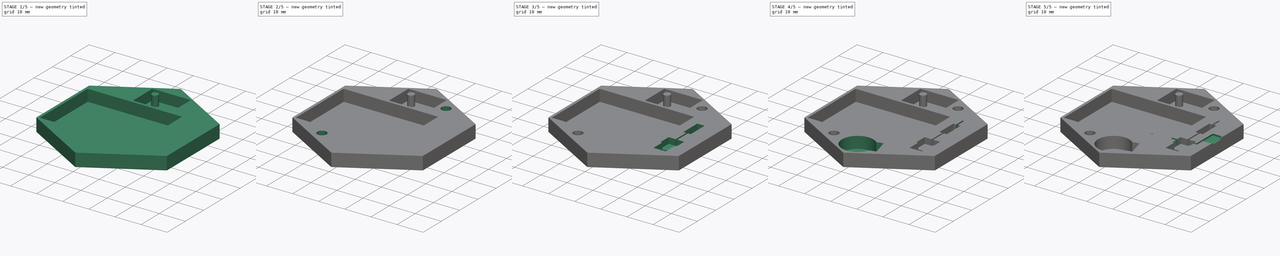
[diagram: build sequence overview — one tinted view per stage of 5, left to right]
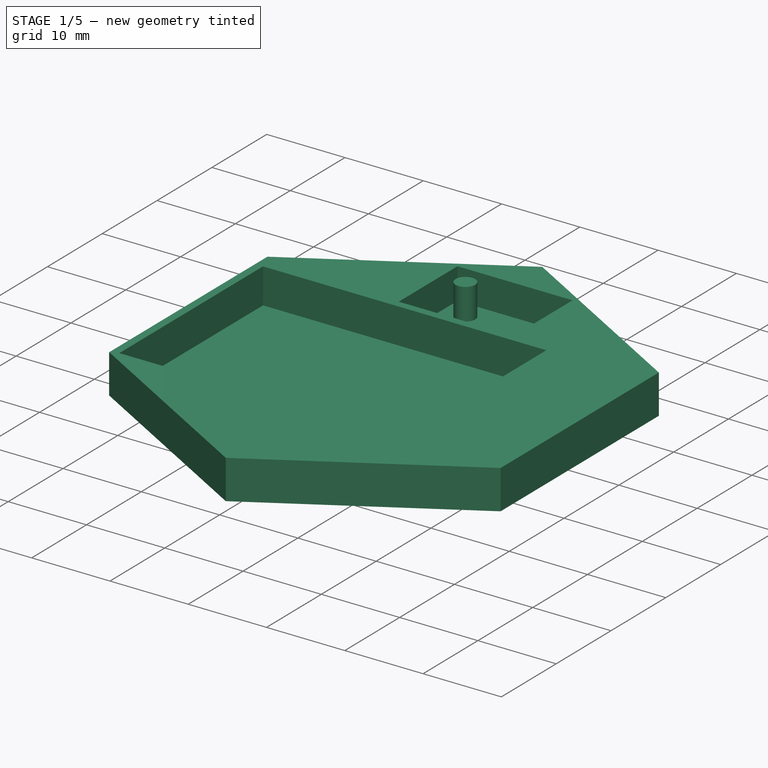
[diagram: stage 1 of 5 — iso view after this stage's code; geometry added in this stage tinted green]
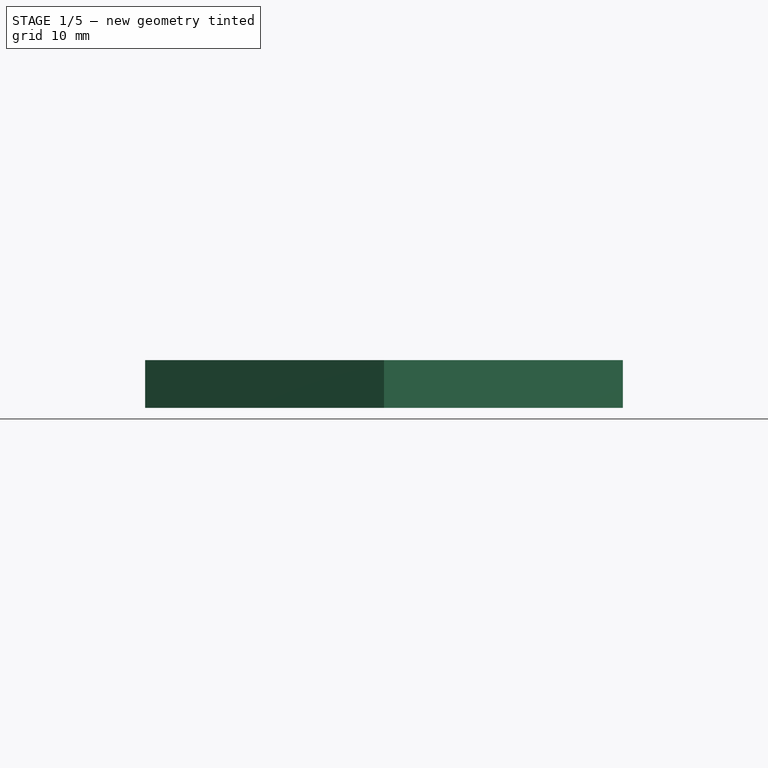
[diagram: stage 1 of 5 — front view after this stage's code; geometry added in this stage tinted green]
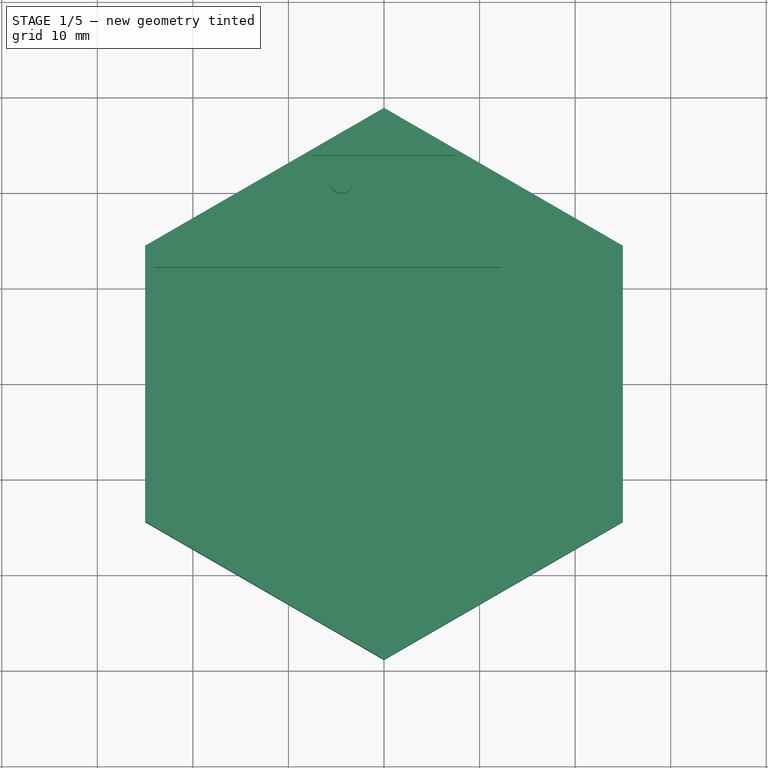
[diagram: stage 1 of 5 — top view after this stage's code; geometry added in this stage tinted green]
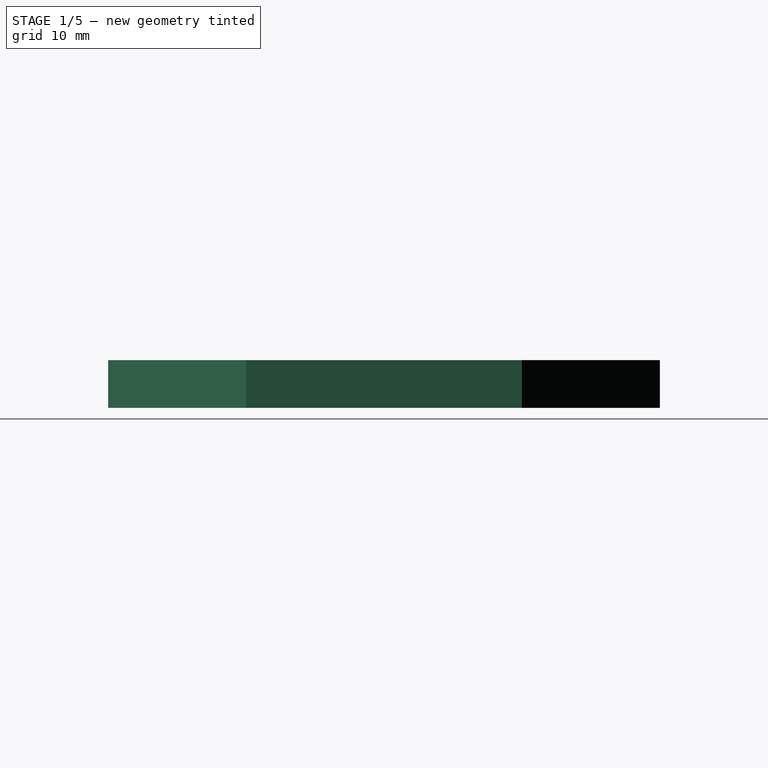
[diagram: stage 1 of 5 — right view after this stage's code; geometry added in this stage tinted green]
FCSTD DOCUMENT  (FreeCAD 0.16R6712 (Git))
Label: VarioFont
License: All rights reserved
LicenseURL: http://en.wikipedia.org/wiki/All_rights_reserved
objects: Sketcher::SketchObject×18, PartDesign::Pocket×16, PartDesign::Pad×2
note: 54 computed .brp shape members not serialized (recipe doc carries the construction recipe); baked Part::Feature solids carry a one-line shape summary decoded from their .brp

FEATURE [Sketcher::SketchObject] Sketch  label="BaseS"
  sketch-geometry (7):
    g0: LineSegment StartX=-25 StartY=14.4338 StartZ=0 EndX=-25 EndY=-14.4338 EndZ=0
    g1: LineSegment StartX=-25 StartY=-14.4338 StartZ=0 EndX=0 EndY=-28.8675 EndZ=0
    g2: LineSegment StartX=0 StartY=-28.8675 StartZ=0 EndX=25 EndY=-14.4338 EndZ=0
    g3: LineSegment StartX=25 StartY=-14.4338 StartZ=0 EndX=25 EndY=14.4338 EndZ=0
    g4: LineSegment StartX=25 StartY=14.4338 StartZ=0 EndX=0 EndY=28.8675 EndZ=0
    g5: LineSegment StartX=0 StartY=28.8675 StartZ=0 EndX=-25 EndY=14.4338 EndZ=0
    g6: Circle [constr] CenterX=0 CenterY=0 CenterZ=0 NormalX=0 NormalY=0 NormalZ=1 Radius=28.8675
  constraints (16):
    c: Coincident(g0,g1)
    c: Coincident(g1,g2)
    c: Coincident(g2,g3)
    c: Coincident(g3,g4)
    c: Coincident(g4,g5)
    c: Coincident(g5,g0)
    c: Equal(g0, g1-g5) x5
    c: PointOnObject(g0,g6)
    c: PointOnObject(g1,g6)
    c: PointOnObject(g2,g6)
    c: PointOnObject(g3,g6)
    c: PointOnObject(g4,g6)
    c: PointOnObject(g5,g6)
    c: Coincident(g6,g-1)
    c: Perpendicular(g-1,g0)
    c: Distance(g-1,g0) = 25
FEATURE [PartDesign::Pad] Pad  label="Base"
  Length = 5
  Length2 = 100
  Sketch = -> Sketch
  Type = 0
FEATURE [Sketcher::SketchObject] Sketch001  label="BatterieS"
  ExternalGeometry = -> [Pad]
  Placement = pos=(0,0,5) rot=(0,0,1;0rad)
  Support = -> Pad [Face8]
  sketch-geometry (4):
    g0: LineSegment StartX=-24 StartY=12.2 StartZ=0 EndX=12.2 EndY=12.2 EndZ=0
    g1: LineSegment StartX=12.2 StartY=12.2 StartZ=0 EndX=12.2 EndY=-14 EndZ=0
    g2: LineSegment StartX=12.2 StartY=-14 StartZ=0 EndX=-24 EndY=-14 EndZ=0
    g3: LineSegment StartX=-24 StartY=-14 StartZ=0 EndX=-24 EndY=12.2 EndZ=0
  constraints (12):
    c: Coincident(g0,g1)
    c: Coincident(g1,g2)
    c: Coincident(g2,g3)
    c: Coincident(g3,g0)
    c: Horizontal(g0)
    c: Horizontal(g2)
    c: Vertical(g1)
    c: Vertical(g3)
    c: DistanceX(g0,g0) = 36.2
    c: DistanceY(g3,g3) = 26.2
    c: Distance(g-3,g3) = 1
    c: Distance(g-1,g2) = 14
FEATURE [PartDesign::Pocket] Pocket  label="Batterie"
  Length = 4.5
  Sketch = -> Sketch001
  Type = 0
FEATURE [Sketcher::SketchObject] Sketch002  label="BarroFondS"
  ExternalGeometry = -> [Pocket]
  Placement = pos=(0,0,5) rot=(0,0,1;0rad)
  Support = -> Pocket [Face5]
  sketch-geometry (4):
    g0: LineSegment StartX=-7.35 StartY=23.9 StartZ=0 EndX=7.35 EndY=23.9 EndZ=0
    g1: LineSegment StartX=7.35 StartY=23.9 StartZ=0 EndX=7.35 EndY=13.2 EndZ=0
    g2: LineSegment StartX=7.35 StartY=13.2 StartZ=0 EndX=-7.35 EndY=13.2 EndZ=0
    g3: LineSegment StartX=-7.35 StartY=13.2 StartZ=0 EndX=-7.35 EndY=23.9 EndZ=0
  constraints (12):
    c: Coincident(g0,g1)
    c: Coincident(g1,g2)
    c: Coincident(g2,g3)
    c: Coincident(g3,g0)
    c: Horizontal(g0)
    c: Horizontal(g2)
    c: Vertical(g1)
    c: Vertical(g3)
    c: Distance(g0) = 14.7
    c: Distance(g3) = 10.7
    c: DistanceX(g-2,g1) = 7.35
    c: DistanceY(g-1,g0) = 23.9
FEATURE [PartDesign::Pocket] Pocket001  label="BarroFond"
  Length = 4
  Sketch = -> Sketch002
  Type = 0
FEATURE [Sketcher::SketchObject] Sketch003  label="BarroTigeS"
  ExternalGeometry = -> [Pocket001]
  Placement = pos=(0,0,1) rot=(0,0,1;0rad)
  Support = -> Pocket001 [Face17]
  sketch-geometry (1):
    g0: Circle CenterX=-4.45 CenterY=21.2 CenterZ=0 NormalX=0 NormalY=0 NormalZ=1 Radius=1.25
  constraints (3):
    c: Radius(g0) = 1.25
    c: Distance(g0,g-3) = 2.7
    c: Distance(g0,g-4) = 2.9
FEATURE [PartDesign::Pad] Pad001  label="BarroTige"
  Length = 4
  Length2 = 100
  Sketch = -> Sketch003
  Type = 0
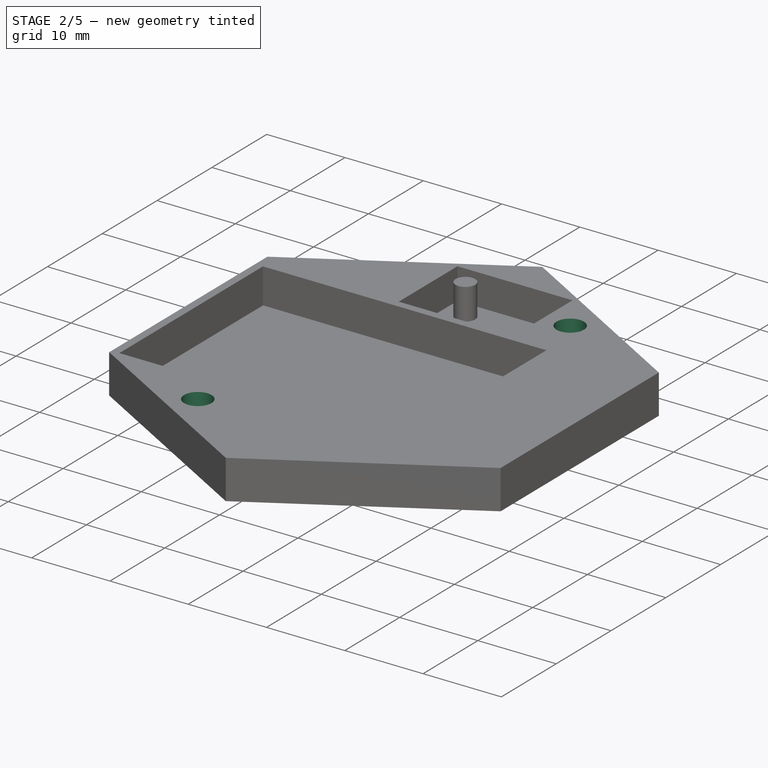
[diagram: stage 2 of 5 — iso view after this stage's code; geometry added in this stage tinted green]
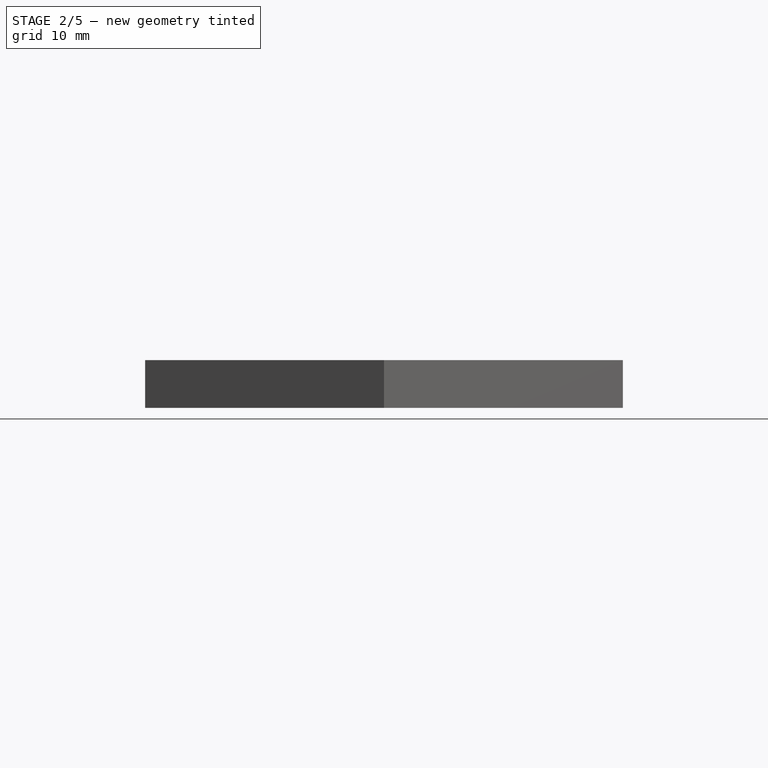
[diagram: stage 2 of 5 — front view after this stage's code; geometry added in this stage tinted green]
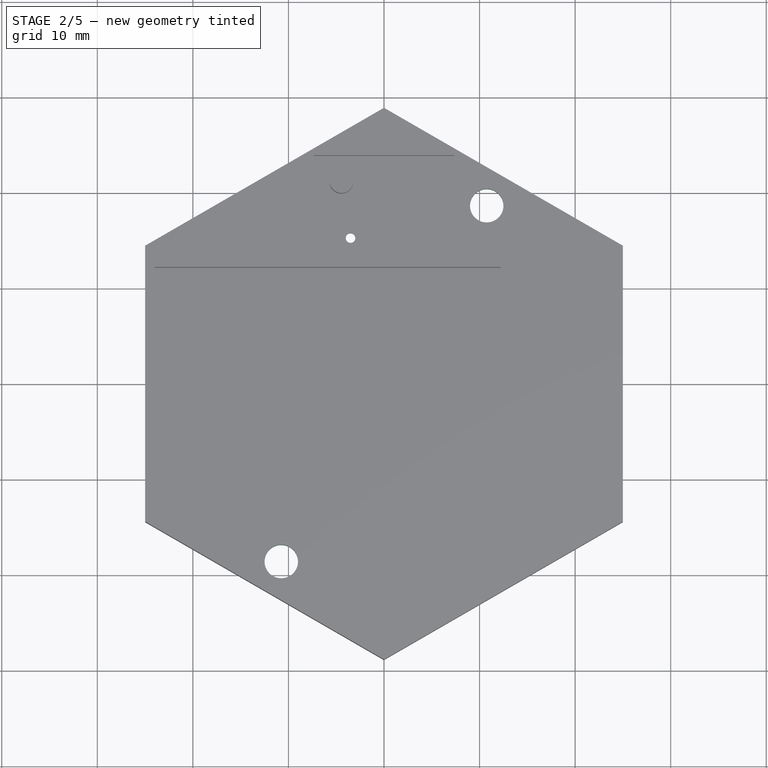
[diagram: stage 2 of 5 — top view after this stage's code; geometry added in this stage tinted green]
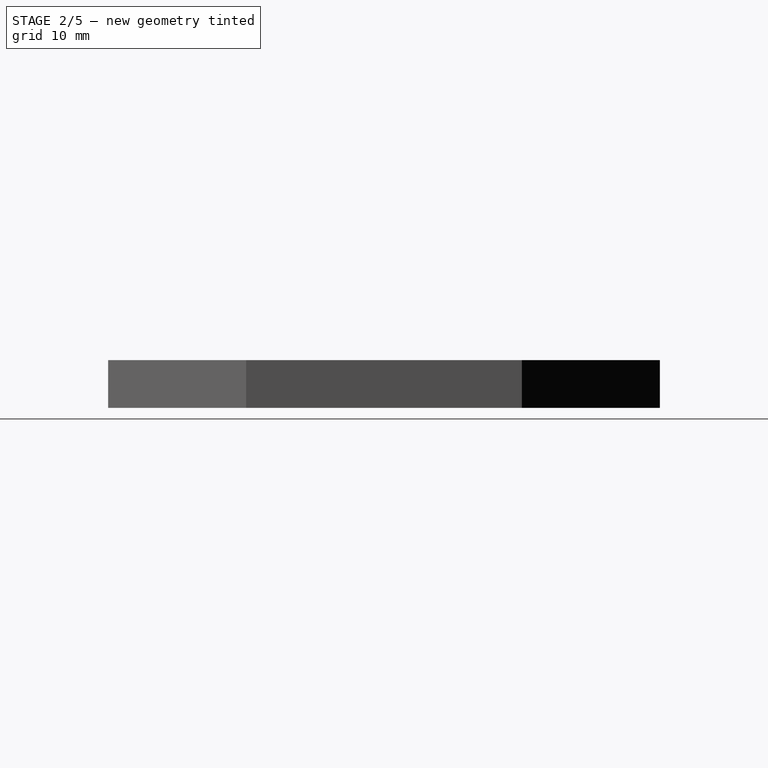
[diagram: stage 2 of 5 — right view after this stage's code; geometry added in this stage tinted green]
FEATURE [Sketcher::SketchObject] Sketch004  label="BarroTrouS"
  ExternalGeometry = -> [Pad001]
  Placement = pos=(0,0,1) rot=(0,0,1;0rad)
  Support = -> Pad001 [Face17]
  sketch-geometry (1):
    g0: Circle CenterX=-3.5 CenterY=15.3 CenterZ=0 NormalX=0 NormalY=0 NormalZ=1 Radius=0.5
  constraints (3):
    c: Radius(g0) = 0.5
    c: Distance(g0,g-3) = 2.1
    c: Distance(g0,g-4) = 3.85
FEATURE [PartDesign::Pocket] Pocket002  label="BarroTrou"
  Length = 5
  Sketch = -> Sketch004
  Type = 1
FEATURE [Sketcher::SketchObject] Sketch005  label="VisseS"
  ExternalGeometry = -> [Pocket002]
  Placement = pos=(0,0,5) rot=(0,0,1;0rad)
  Support = -> Pocket002 [Face5]
  sketch-geometry (4):
    g0: Circle CenterX=10.75 CenterY=18.6195 CenterZ=0 NormalX=0 NormalY=0 NormalZ=1 Radius=1.75
    g1: Circle CenterX=-10.75 CenterY=-18.6195 CenterZ=0 NormalX=0 NormalY=0 NormalZ=1 Radius=1.75
    g2: LineSegment [constr] StartX=0 StartY=0 StartZ=0 EndX=12.5 EndY=21.6506 EndZ=0
    g3: LineSegment [constr] StartX=-12.5 StartY=-21.6506 StartZ=0 EndX=0 EndY=0 EndZ=0
  constraints (11):
    c: Coincident(g3,g-1)
    c: Coincident(g2,g-1)
    c: PointOnObject(g3,g-4)
    c: Symmetric(g-4,g-4,g3)
    c: Symmetric(g-3,g-3,g2)
    c: PointOnObject(g0,g2)
    c: Radius(g0) = 1.75
    c: Distance(g-1,g0) = 21.5
    c: PointOnObject(g1,g3)
    c: Distance(g-1,g1) = 21.5
    c: Radius(g1) = 1.75
FEATURE [PartDesign::Pocket] Pocket003  label="Visses"
  Length = 5
  Sketch = -> Sketch005
  Type = 1
FEATURE [Sketcher::SketchObject] Sketch006  label="BoulonsS"
  ExternalGeometry = -> [Pocket003]
  Placement = pos=(0,0,0) rot=(1,0,0;3.14159rad)
  Support = -> Pocket003 [Face4]
  sketch-geometry (14):
    g0: LineSegment StartX=-13.05 StartY=17.2916 StartZ=0 EndX=-10.75 EndY=15.9637 EndZ=0
    g1: LineSegment StartX=-10.75 StartY=15.9637 StartZ=0 EndX=-8.45 EndY=17.2916 EndZ=0
    g2: LineSegment StartX=-8.45 StartY=17.2916 StartZ=0 EndX=-8.45 EndY=19.9475 EndZ=0
    g3: LineSegment StartX=-8.45 StartY=19.9475 StartZ=0 EndX=-10.75 EndY=21.2754 EndZ=0
    g4: LineSegment StartX=-10.75 StartY=21.2754 StartZ=0 EndX=-13.05 EndY=19.9475 EndZ=0
    g5: LineSegment StartX=-13.05 StartY=19.9475 StartZ=0 EndX=-13.05 EndY=17.2916 EndZ=0
    g6: Circle [constr] CenterX=-10.75 CenterY=18.6195 CenterZ=0 NormalX=0 NormalY=0 NormalZ=1 Radius=2.65581
    g7: LineSegment StartX=10.75 StartY=-21.2754 StartZ=0 EndX=13.05 EndY=-19.9475 EndZ=0
    g8: LineSegment StartX=13.05 StartY=-19.9475 StartZ=0 EndX=13.05 EndY=-17.2916 EndZ=0
    g9: LineSegment StartX=13.05 StartY=-17.2916 StartZ=0 EndX=10.75 EndY=-15.9637 EndZ=0
    g10: LineSegment StartX=10.75 StartY=-15.9637 StartZ=0 EndX=8.45 EndY=-17.2916 EndZ=0
    g11: LineSegment StartX=8.45 StartY=-17.2916 StartZ=0 EndX=8.45 EndY=-19.9475 EndZ=0
    g12: LineSegment StartX=8.45 StartY=-19.9475 StartZ=0 EndX=10.75 EndY=-21.2754 EndZ=0
    g13: Circle [constr] CenterX=10.75 CenterY=-18.6195 CenterZ=0 NormalX=0 NormalY=0 NormalZ=1 Radius=2.65581
  constraints (32):
    c: Coincident(g0,g1)
    c: Coincident(g1,g2)
    c: Coincident(g2,g3)
    c: Coincident(g3,g4)
    c: Coincident(g4,g5)
    c: Coincident(g5,g0)
    c: Equal(g0, g1-g5) x5
    c: PointOnObject(g0,g6)
    c: PointOnObject(g1,g6)
    c: PointOnObject(g2,g6)
    c: PointOnObject(g3,g6)
    c: PointOnObject(g4,g6)
    c: PointOnObject(g5,g6)
    c: Coincident(g7,g8)
    c: Coincident(g8,g9)
    c: Coincident(g9,g10)
    c: Coincident(g10,g11)
    c: Coincident(g11,g12)
    c: Coincident(g12,g7)
    c: Equal(g7, g8-g12) x5
    c: PointOnObject(g7,g13)
    c: PointOnObject(g8,g13)
    c: PointOnObject(g9,g13)
    c: PointOnObject(g10,g13)
    c: PointOnObject(g11,g13)
    c: PointOnObject(g12,g13)
    c: Coincident(g13,g-4)
    c: Parallel(g7,g-5)
    c: Distance(g13,g12) = 2.3
    c: Coincident(g6,g-3)
    c: Distance(g6,g5) = 2.3
    c: Parallel(g4,g-6)
FEATURE [PartDesign::Pocket] Pocket004  label="Boulons"
  Length = 2.5
  Sketch = -> Sketch006
  Type = 0
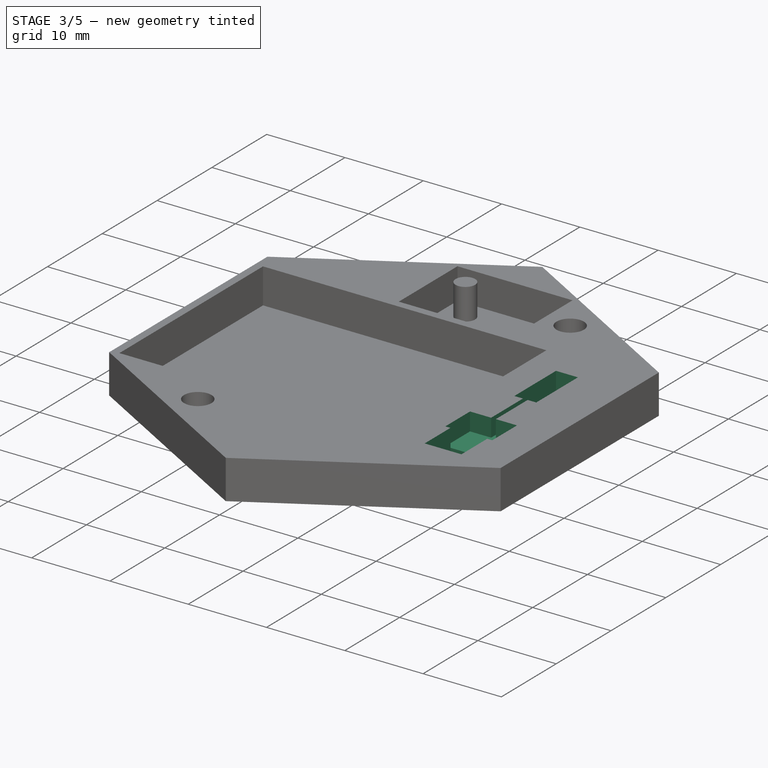
[diagram: stage 3 of 5 — iso view after this stage's code; geometry added in this stage tinted green]
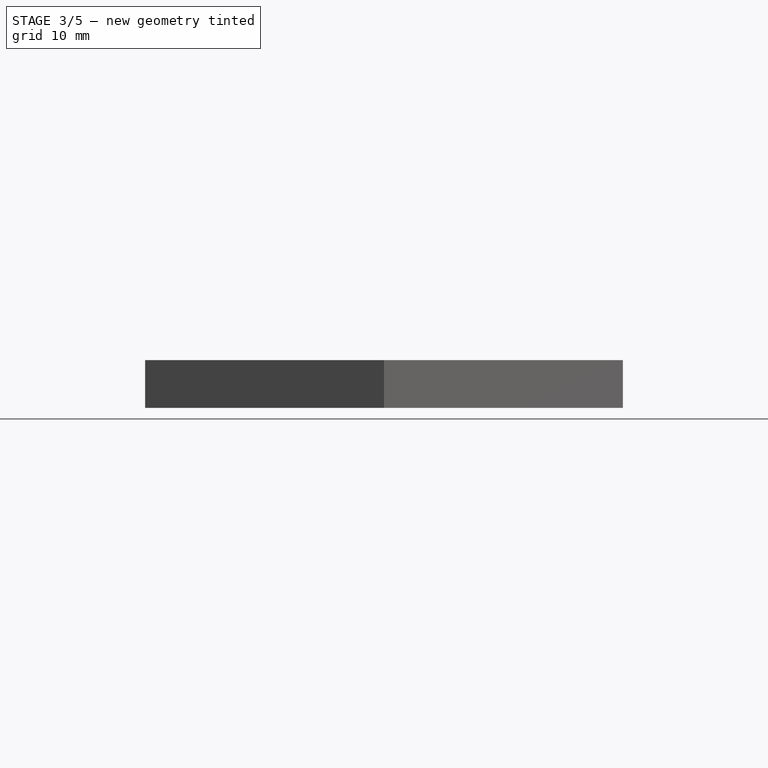
[diagram: stage 3 of 5 — front view after this stage's code; geometry added in this stage tinted green]
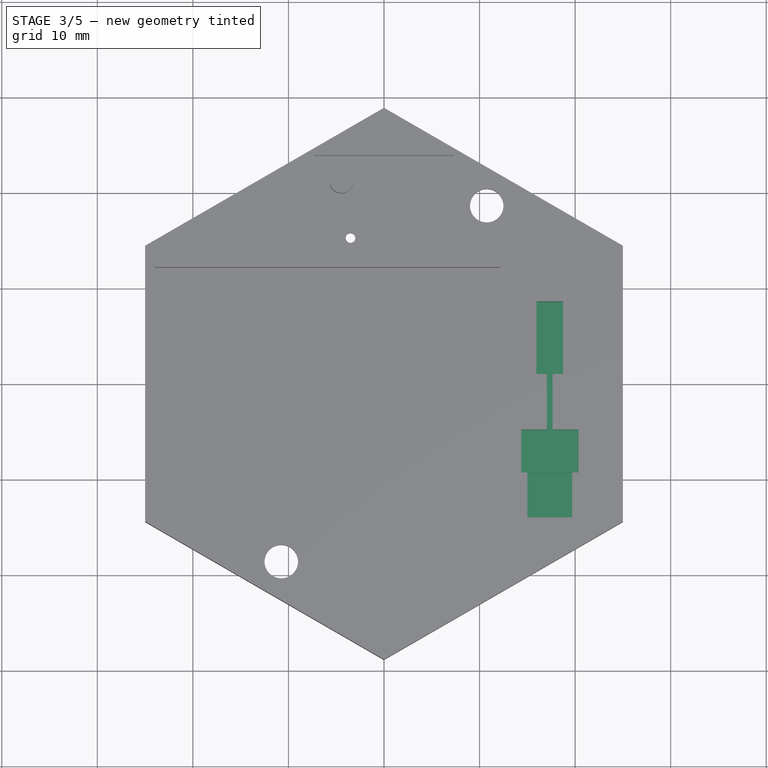
[diagram: stage 3 of 5 — top view after this stage's code; geometry added in this stage tinted green]
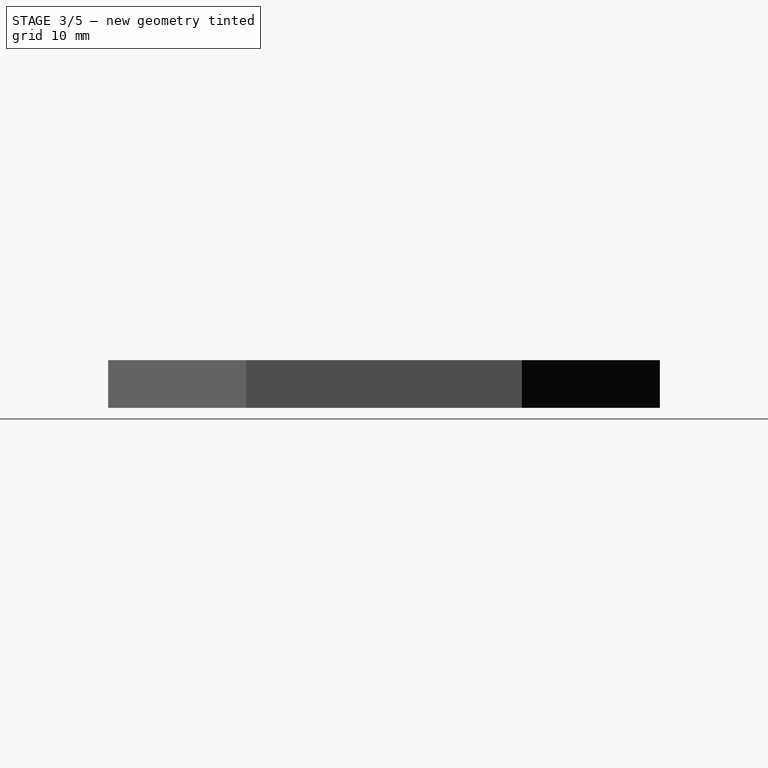
[diagram: stage 3 of 5 — right view after this stage's code; geometry added in this stage tinted green]
FEATURE [Sketcher::SketchObject] Sketch007  label="Transostor1S"
  ExternalGeometry = -> [Pocket004]
  Placement = pos=(0,0,5) rot=(0,0,1;0rad)
  Support = -> Pocket004 [Face5]
  sketch-geometry (4):
    g0: LineSegment StartX=15 StartY=-9.3 StartZ=0 EndX=19.7 EndY=-9.3 EndZ=0
    g1: LineSegment StartX=19.7 StartY=-9.3 StartZ=0 EndX=19.7 EndY=-14 EndZ=0
    g2: LineSegment StartX=19.7 StartY=-14 StartZ=0 EndX=15 EndY=-14 EndZ=0
    g3: LineSegment StartX=15 StartY=-14 StartZ=0 EndX=15 EndY=-9.3 EndZ=0
  constraints (12):
    c: Coincident(g0,g1)
    c: Coincident(g1,g2)
    c: Coincident(g2,g3)
    c: Coincident(g3,g0)
    c: Horizontal(g0)
    c: Horizontal(g2)
    c: Vertical(g1)
    c: Vertical(g3)
    c: DistanceY(g3,g3) = 4.7
    c: DistanceX(g2,g2) = 4.7
    c: DistanceX(g-2,g2) = 15
    c: Distance(g-1,g2) = 14
FEATURE [PartDesign::Pocket] Pocket005  label="Transistor1"
  Length = 3.7
  Sketch = -> Sketch007
  Type = 0
FEATURE [Sketcher::SketchObject] Sketch008  label="Transostor2S"
  ExternalGeometry = -> [Pocket005]
  Placement = pos=(0,0,5) rot=(0,0,1;0rad)
  Support = -> Pocket005 [Face5]
  sketch-geometry (5):
    g0: LineSegment StartX=14.35 StartY=-4.8 StartZ=0 EndX=20.35 EndY=-4.8 EndZ=0
    g1: LineSegment StartX=20.35 StartY=-4.8 StartZ=0 EndX=20.35 EndY=-9.3 EndZ=0
    g2: LineSegment StartX=20.35 StartY=-9.3 StartZ=0 EndX=14.35 EndY=-9.3 EndZ=0
    g3: LineSegment StartX=14.35 StartY=-9.3 StartZ=0 EndX=14.35 EndY=-4.8 EndZ=0
    g4: GeomPoint [constr] X=17.35 Y=-9.3 Z=0
  constraints (14):
    c: Coincident(g0,g1)
    c: Coincident(g1,g2)
    c: Coincident(g2,g3)
    c: Coincident(g3,g0)
    c: Horizontal(g0)
    c: Horizontal(g2)
    c: Vertical(g1)
    c: Vertical(g3)
    c: PointOnObject(g-3,g2)
    c: DistanceY(g3,g3) = 4.5
    c: DistanceX(g0,g0) = 6
    c: PointOnObject(g4,g-3)
    c: Symmetric(g-3,g-3,g4)
    c: Symmetric(g2,g1,g4)
FEATURE [PartDesign::Pocket] Pocket006  label="Transistor2"
  Length = 2.3
  Sketch = -> Sketch008
  Type = 0
FEATURE [Sketcher::SketchObject] Sketch009  label="Tige1S"
  ExternalGeometry = -> [Pocket006]
  Placement = pos=(0,0,5) rot=(0,0,1;0rad)
  Support = -> Pocket006 [Face5]
  sketch-geometry (5):
    g0: LineSegment StartX=17.05 StartY=1 StartZ=0 EndX=17.65 EndY=1 EndZ=0
    g1: LineSegment StartX=17.65 StartY=1 StartZ=0 EndX=17.65 EndY=-4.8 EndZ=0
    g2: LineSegment StartX=17.65 StartY=-4.8 StartZ=0 EndX=17.05 EndY=-4.8 EndZ=0
    g3: LineSegment StartX=17.05 StartY=-4.8 StartZ=0 EndX=17.05 EndY=1 EndZ=0
    g4: GeomPoint [constr] X=17.35 Y=-4.8 Z=0
  constraints (13):
    c: Coincident(g0,g1)
    c: Coincident(g1,g2)
    c: Coincident(g2,g3)
    c: Coincident(g3,g0)
    c: Horizontal(g0)
    c: Horizontal(g2)
    c: Vertical(g1)
    c: Vertical(g3)
    c: PointOnObject(g4,g-3)
    c: Symmetric(g-3,g-3,g4)
    c: Symmetric(g2,g1,g4)
    c: DistanceX(g0,g0) = 0.6
    c: Distance(g0,g-4) = 15
FEATURE [PartDesign::Pocket] Pocket007  label="Tige1"
  Length = 2.3
  Sketch = -> Sketch009
  Type = 0
FEATURE [Sketcher::SketchObject] Sketch010  label="DiodeS"
  ExternalGeometry = -> [Pocket007]
  Placement = pos=(0,0,5) rot=(0,0,1;0rad)
  Support = -> Pocket007 [Face5]
  sketch-geometry (5):
    g0: LineSegment StartX=15.95 StartY=8.6 StartZ=0 EndX=18.75 EndY=8.6 EndZ=0
    g1: LineSegment StartX=18.75 StartY=8.6 StartZ=0 EndX=18.75 EndY=1 EndZ=0
    g2: LineSegment StartX=18.75 StartY=1 StartZ=0 EndX=15.95 EndY=1 EndZ=0
    g3: LineSegment StartX=15.95 StartY=1 StartZ=0 EndX=15.95 EndY=8.6 EndZ=0
    g4: GeomPoint [constr] X=17.35 Y=1 Z=0
  constraints (13):
    c: Coincident(g0,g1)
    c: Coincident(g1,g2)
    c: Coincident(g2,g3)
    c: Coincident(g3,g0)
    c: Horizontal(g0)
    c: Horizontal(g2)
    c: Vertical(g1)
    c: Vertical(g3)
    c: PointOnObject(g4,g2)
    c: Symmetric(g2,g1,g4)
    c: Symmetric(g-4,g-4,g4)
    c: DistanceX(g2,g2) = 2.8
    c: DistanceY(g1,g1) = 7.6
FEATURE [PartDesign::Pocket] Pocket008  label="Diode"
  Length = 2.8
  Sketch = -> Sketch010
  Type = 0
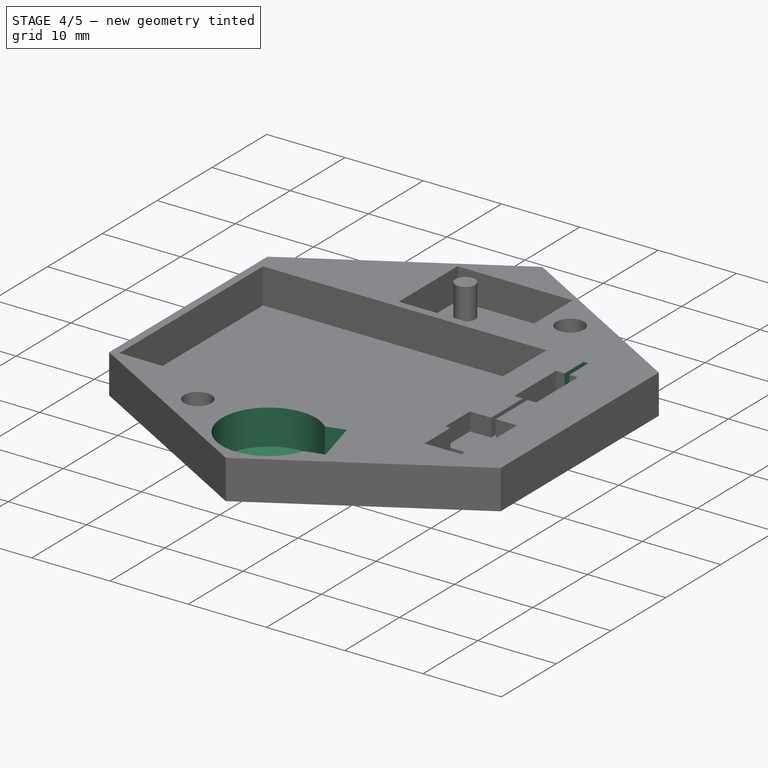
[diagram: stage 4 of 5 — iso view after this stage's code; geometry added in this stage tinted green]
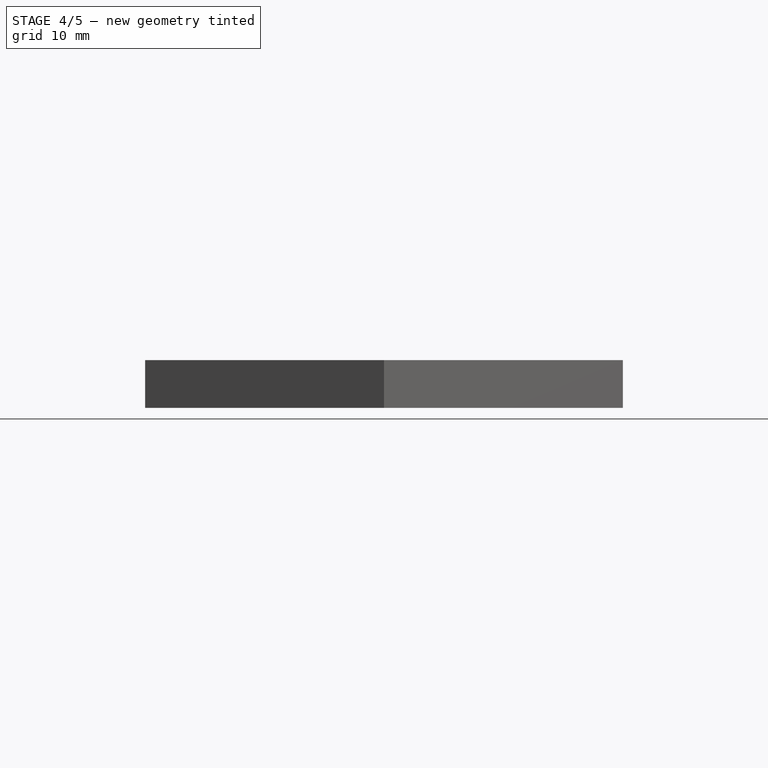
[diagram: stage 4 of 5 — front view after this stage's code; geometry added in this stage tinted green]
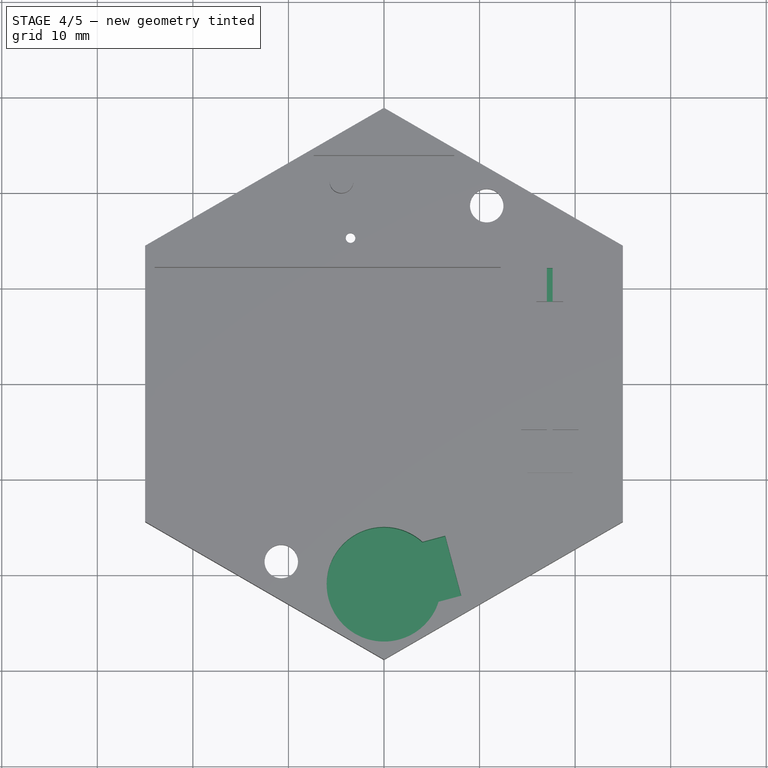
[diagram: stage 4 of 5 — top view after this stage's code; geometry added in this stage tinted green]
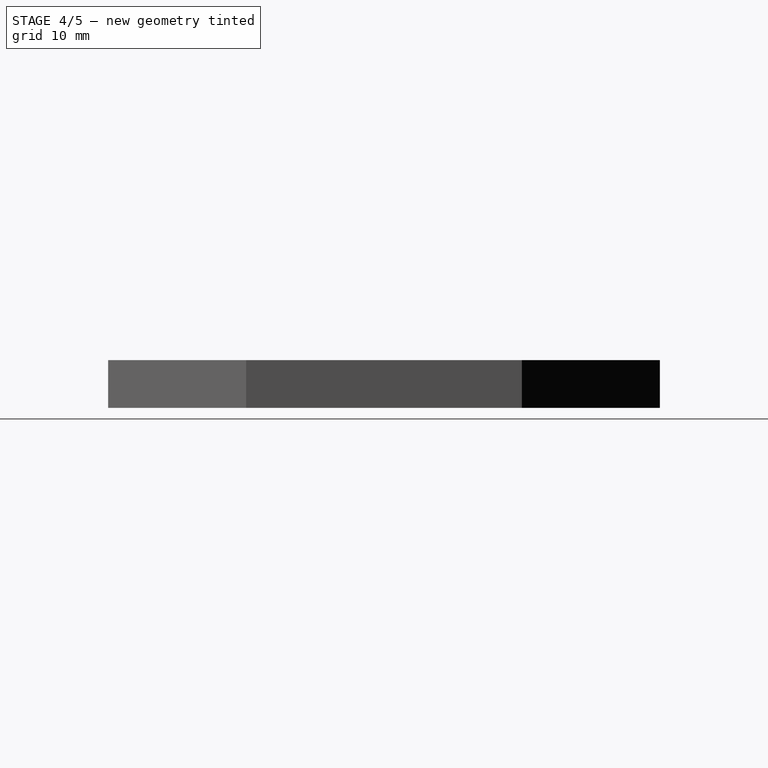
[diagram: stage 4 of 5 — right view after this stage's code; geometry added in this stage tinted green]
FEATURE [Sketcher::SketchObject] Sketch011  label="Tige2S"
  ExternalGeometry = -> [Pocket008]
  Placement = pos=(0,0,5) rot=(0,0,1;0rad)
  Support = -> Pocket008 [Face5]
  sketch-geometry (5):
    g0: LineSegment StartX=17.05 StartY=12.1 StartZ=0 EndX=17.65 EndY=12.1 EndZ=0
    g1: LineSegment StartX=17.65 StartY=12.1 StartZ=0 EndX=17.65 EndY=8.6 EndZ=0
    g2: LineSegment StartX=17.65 StartY=8.6 StartZ=0 EndX=17.05 EndY=8.6 EndZ=0
    g3: LineSegment StartX=17.05 StartY=8.6 StartZ=0 EndX=17.05 EndY=12.1 EndZ=0
    g4: GeomPoint [constr] X=17.35 Y=8.6 Z=0
  constraints (13):
    c: Coincident(g0,g1)
    c: Coincident(g1,g2)
    c: Coincident(g2,g3)
    c: Coincident(g3,g0)
    c: Horizontal(g0)
    c: Horizontal(g2)
    c: Vertical(g1)
    c: Vertical(g3)
    c: PointOnObject(g4,g2)
    c: Symmetric(g2,g1,g4)
    c: Symmetric(g-3,g-3,g4)
    c: DistanceY(g1,g1) = 3.5
    c: DistanceX(g0,g0) = 0.6
FEATURE [PartDesign::Pocket] Pocket009  label="Tige2"
  Length = 2.3
  Sketch = -> Sketch011
  Type = 0
FEATURE [Sketcher::SketchObject] Sketch012  label="BipCercleS"
  Placement = pos=(0,0,5) rot=(0,0,1;0rad)
  Support = -> Pocket009 [Face5]
  sketch-geometry (1):
    g0: Circle CenterX=0 CenterY=-21 CenterZ=0 NormalX=0 NormalY=0 NormalZ=1 Radius=6
  constraints (3):
    c: PointOnObject(g0,g-2)
    c: Distance(g-1,g0) = 21
    c: Radius(g0) = 6
FEATURE [PartDesign::Pocket] Pocket010  label="BipCercle"
  Length = 4.5
  Sketch = -> Sketch012
  Type = 0
FEATURE [Sketcher::SketchObject] Sketch013  label="BipTigeS"
  ExternalGeometry = -> [Pocket010]
  Placement = pos=(0,0,5) rot=(0,0,1;0rad)
  Support = -> Pocket010 [Face5]
  sketch-geometry (4):
    g0: LineSegment StartX=-0.841162 StartY=-17.8607 StartZ=0 EndX=6.40328 EndY=-15.9196 EndZ=0
    g1: LineSegment StartX=6.40328 StartY=-15.9196 StartZ=0 EndX=8.08561 EndY=-22.1981 EndZ=0
    g2: LineSegment StartX=8.08561 StartY=-22.1981 StartZ=0 EndX=0.841162 EndY=-24.1393 EndZ=0
    g3: LineSegment StartX=0.841162 StartY=-24.1393 StartZ=0 EndX=-0.841162 EndY=-17.8607 EndZ=0
  constraints (12):
    c: Coincident(g0,g1)
    c: Coincident(g1,g2)
    c: Coincident(g2,g3)
    c: Coincident(g3,g0)
    c: Angle(g3,g-2) = 2.87979
    c: PointOnObject(g-3,g3)
    c: Symmetric(g0,g2,g-3)
    c: Parallel(g3,g1)
    c: Perpendicular(g0,g3)
    c: Distance(g1) = 6.5
    c: Perpendicular(g2,g1)
    c: Distance(g0) = 7.5
FEATURE [PartDesign::Pocket] Pocket011  label="BipTige"
  Length = 4.5
  Sketch = -> Sketch013
  Type = 0
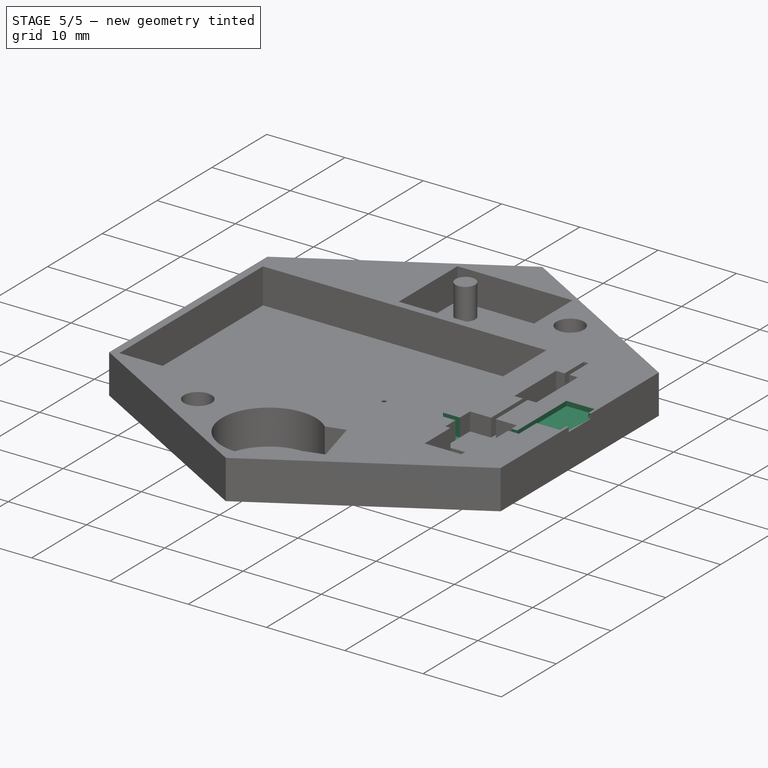
[diagram: stage 5 of 5 — iso view after this stage's code; geometry added in this stage tinted green]
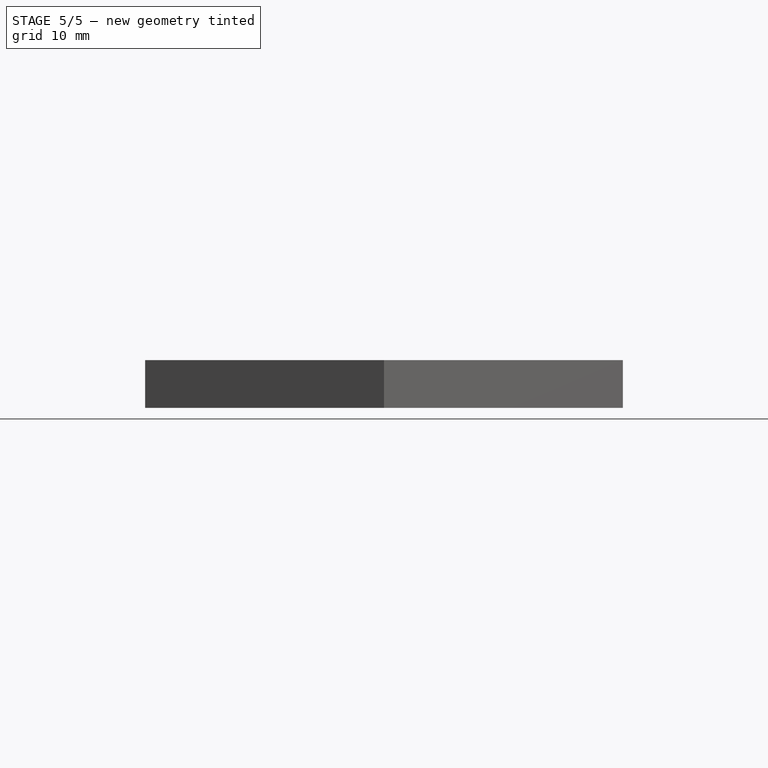
[diagram: stage 5 of 5 — front view after this stage's code; geometry added in this stage tinted green]
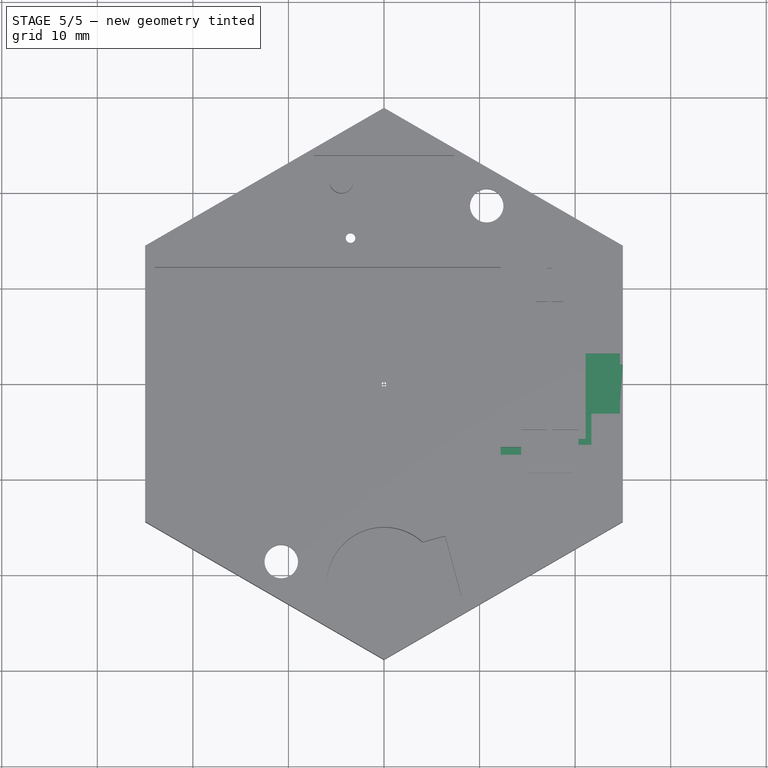
[diagram: stage 5 of 5 — top view after this stage's code; geometry added in this stage tinted green]
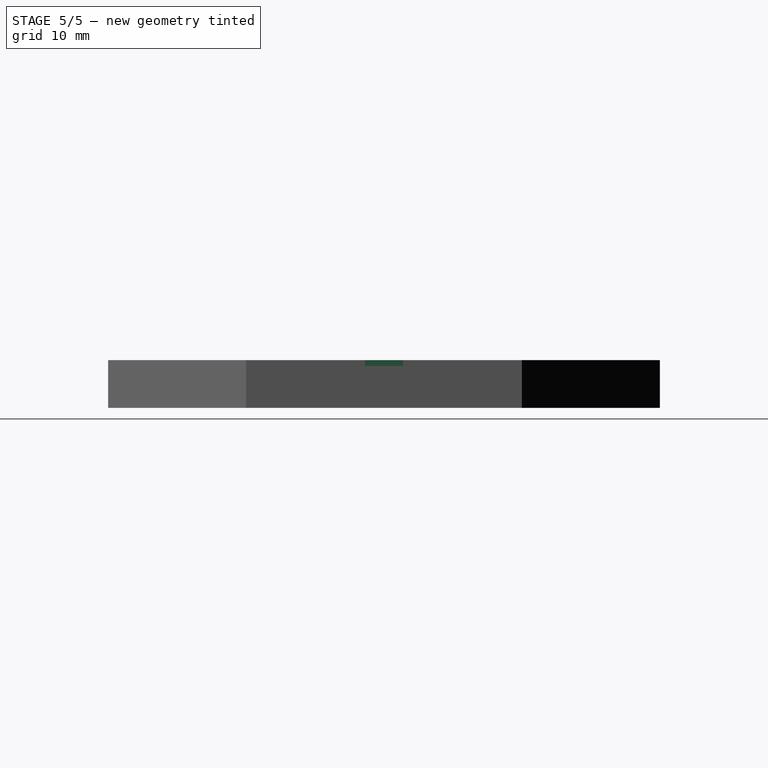
[diagram: stage 5 of 5 — right view after this stage's code; geometry added in this stage tinted green]
FEATURE [Sketcher::SketchObject] Sketch014  label="BatteriePassS"
  ExternalGeometry = -> [Pocket011]
  Placement = pos=(0,0,5) rot=(0,0,1;0rad)
  Support = -> Pocket011 [Face5]
  sketch-geometry (5):
    g0: LineSegment StartX=12.2 StartY=-6.65 StartZ=0 EndX=14.35 EndY=-6.65 EndZ=0
    g1: LineSegment StartX=14.35 StartY=-6.65 StartZ=0 EndX=14.35 EndY=-7.45 EndZ=0
    g2: LineSegment StartX=14.35 StartY=-7.45 StartZ=0 EndX=12.2 EndY=-7.45 EndZ=0
    g3: LineSegment StartX=12.2 StartY=-7.45 StartZ=0 EndX=12.2 EndY=-6.65 EndZ=0
    g4: GeomPoint [constr] X=14.35 Y=-7.05 Z=0
  constraints (13):
    c: Coincident(g0,g1)
    c: Coincident(g1,g2)
    c: Coincident(g2,g3)
    c: Coincident(g3,g0)
    c: Horizontal(g0)
    c: Horizontal(g2)
    c: Vertical(g1)
    c: Vertical(g3)
    c: PointOnObject(g0,g-3)
    c: PointOnObject(g0,g-4)
    c: Distance(g1,g0) = 0.8
    c: Symmetric(g-4,g-4,g4)
    c: Symmetric(g1,g0,g4)
FEATURE [PartDesign::Pocket] Pocket012  label="BatteriePass"
  Length = 2.3
  Sketch = -> Sketch014
  Type = 0
FEATURE [Sketcher::SketchObject] Sketch015  label="BouttonS"
  ExternalGeometry = -> [Pocket012]
  Placement = pos=(0,0,5) rot=(0,0,1;0rad)
  Support = -> Pocket012 [Face5]
  sketch-geometry (10):
    g0: LineSegment StartX=21.1 StartY=3.15 StartZ=0 EndX=24.7 EndY=3.15 EndZ=0
    g1: LineSegment StartX=24.7 StartY=-3.15 StartZ=0 EndX=21.1 EndY=-3.15 EndZ=0
    g2: LineSegment StartX=21.1 StartY=-3.15 StartZ=0 EndX=21.1 EndY=3.15 EndZ=0
    g3: LineSegment StartX=24.7 StartY=3.15 StartZ=0 EndX=24.7 EndY=2 EndZ=0
    g4: LineSegment StartX=24.7 StartY=2 StartZ=0 EndX=25.4 EndY=2 EndZ=0
    g5: LineSegment StartX=25.4 StartY=2 StartZ=0 EndX=25.4 EndY=-2 EndZ=0
    g6: LineSegment StartX=25.4 StartY=-2 StartZ=0 EndX=24.7 EndY=-2 EndZ=0
    g7: LineSegment StartX=24.7 StartY=-2 StartZ=0 EndX=24.7 EndY=-3.15 EndZ=0
    g8: GeomPoint [constr] X=21.1 Y=0 Z=0
    g9: GeomPoint [constr] X=25.4 Y=0 Z=0
  constraints (28):
    c: Coincident(g1,g2)
    c: Coincident(g2,g0)
    c: Horizontal(g0)
    c: Horizontal(g1)
    c: Vertical(g2)
    c: Horizontal(g4)
    c: Vertical(g5)
    c: Horizontal(g6)
    c: Vertical(g7)
    c: Coincident(g1,g7)
    c: Coincident(g0,g3)
    c: Coincident(g3,g4)
    c: Coincident(g4,g5)
    c: Coincident(g6,g7)
    c: Coincident(g5,g6)
    c: PointOnObject(g8,g2)
    c: Symmetric(g0,g1,g8)
    c: PointOnObject(g8,g-1)
    c: Vertical(g3)
    c: PointOnObject(g9,g5)
    c: Symmetric(g4,g5,g9)
    c: Equal(g0,g1)
    c: PointOnObject(g9,g-1)
    c: DistanceY(g5,g5) = 4
    c: DistanceY(g2,g2) = 6.3
    c: DistanceX(g0,g0) = 3.6
    c: Distance(g4,g2) = 4.3
    c: Distance(g0,g-3) = 0.3
FEATURE [PartDesign::Pocket] Pocket013  label="Boutton"
  Length = 0.6
  Sketch = -> Sketch015
  Type = 0
FEATURE [Sketcher::SketchObject] Sketch016  label="TigeBouttonS"
  ExternalGeometry = -> [Pocket013]
  Placement = pos=(0,0,5) rot=(0,0,1;0rad)
  Support = -> Pocket013 [Face5]
  sketch-geometry (6):
    g0: LineSegment StartX=20.35 StartY=-5.8 StartZ=0 EndX=21.1 EndY=-5.8 EndZ=0
    g1: LineSegment StartX=21.1 StartY=-3.15 StartZ=0 EndX=21.1 EndY=-5.8 EndZ=0
    g2: LineSegment StartX=21.1 StartY=-3.15 StartZ=0 EndX=21.7 EndY=-3.15 EndZ=0
    g3: LineSegment StartX=21.7 StartY=-3.15 StartZ=0 EndX=21.7 EndY=-6.4 EndZ=0
    g4: LineSegment StartX=21.7 StartY=-6.4 StartZ=0 EndX=20.35 EndY=-6.4 EndZ=0
    g5: LineSegment StartX=20.35 StartY=-5.8 StartZ=0 EndX=20.35 EndY=-6.4 EndZ=0
  constraints (17):
    c: Horizontal(g0)
    c: Vertical(g1)
    c: Horizontal(g2)
    c: Vertical(g3)
    c: Horizontal(g4)
    c: Coincident(g0,g5)
    c: Coincident(g4,g5)
    c: Vertical(g5)
    c: Coincident(g0,g1)
    c: Coincident(g3,g4)
    c: Coincident(g1,g2)
    c: Coincident(g2,g3)
    c: DistanceX(g2,g2) = 0.6
    c: DistanceY(g5,g5) = 0.6
    c: Distance(g-4,g0) = 1
    c: PointOnObject(g0,g-4)
    c: Coincident(g1,g-3)
FEATURE [PartDesign::Pocket] Pocket014  label="TigeBoutton"
  Length = 1
  Sketch = -> Sketch016
  Type = 0
FEATURE [Sketcher::SketchObject] Sketch017  label="TrouCentrageS"
  Placement = pos=(0,0,0.5) rot=(0,0,1;0rad)
  Support = -> Pocket014 [Face78]
  sketch-geometry (1):
    g0: Circle CenterX=0 CenterY=0 CenterZ=0 NormalX=0 NormalY=0 NormalZ=1 Radius=0.25
  constraints (2):
    c: Coincident(g0,g-1)
    c: Radius(g0) = 0.25
FEATURE [PartDesign::Pocket] Pocket015  label="TrouCentrage"
  Length = 5
  Sketch = -> Sketch017
  Type = 1
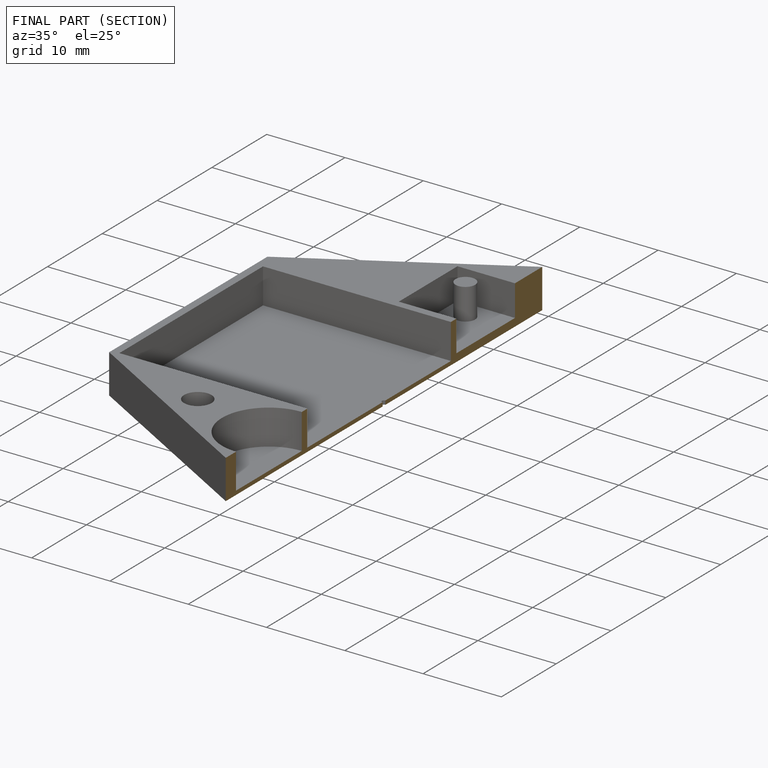
[diagram: finished part — half-section view (interior)]
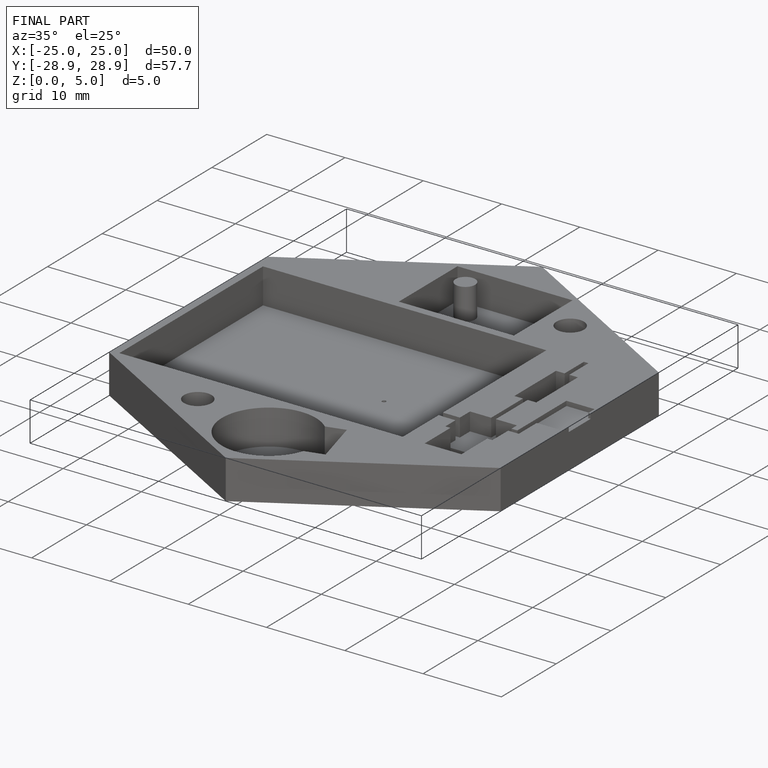
[diagram: finished part — iso view with bounding-box wireframe]
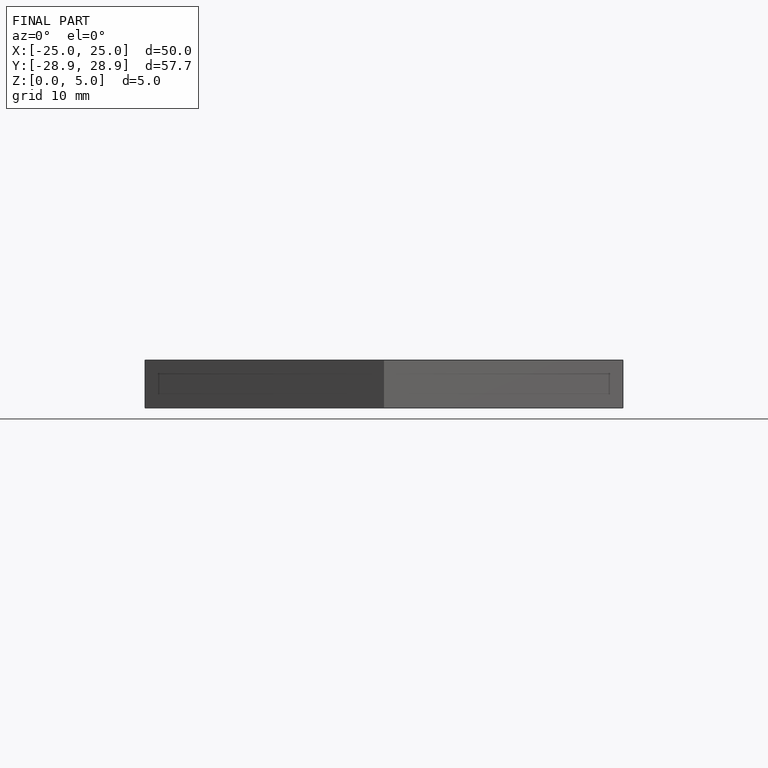
[diagram: finished part — front view with bounding-box wireframe]
